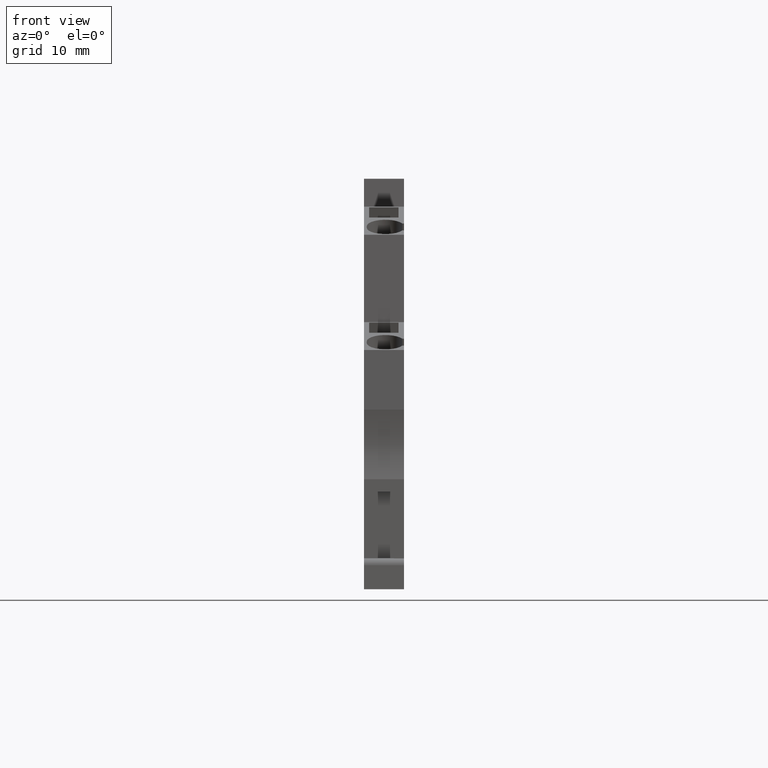
[diagram: clean part render]
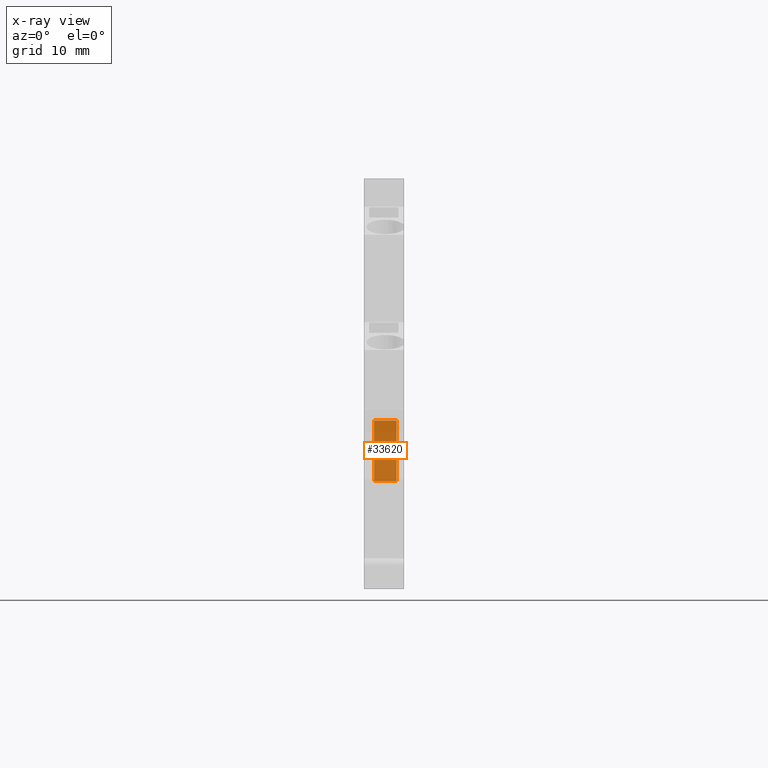
[diagram: x-ray — body ghosted, one internal face saturated and labeled with its STEP entity id]
A machine part, front view, then the same camera in x-ray: the body is ghosted and one INTERNAL B-rep face — a face not visible from any outside direction — is saturated and labeled: STEP entity #33620.
In plain terms, the highlighted planar face has unit normal (0, 0.9397, -0.342).
Its self-contained STEP definition (entity closure, byte-faithful):
#28800=CARTESIAN_POINT('',(135.01692170723,-45.8299339805575,
52.9600000000294));
#28810=VERTEX_POINT('',#28800);
#28840=CARTESIAN_POINT('',(135.01692170723,-45.8299339805575,
53.4921385846868));
#28850=DIRECTION('',(0.,0.,-1.));
#28860=VECTOR('',#28850,1.);
#28870=LINE('',#28840,#28860);
#28880=CARTESIAN_POINT('',(135.01692170723,-45.8299339805575,
50.0600000000294));
#28890=VERTEX_POINT('',#28880);
#28900=EDGE_CURVE('',#28810,#28890,#28870,.T.);
#33320=CARTESIAN_POINT('',(133.666060598337,-49.5413943740754,
52.9600000000294));
#33330=DIRECTION('',(0.939692620786336,-0.342020143324494,0.));
#33340=DIRECTION('',(-0.342020143324494,-0.939692620786336,0.));
#33350=AXIS2_PLACEMENT_3D('',#33320,#33330,#33340);
#33360=PLANE('',#33350);
#33370=CARTESIAN_POINT('',(140.677355079249,-30.2780211065491,
52.9600000000294));
#33380=DIRECTION('',(-0.342020143324494,-0.939692620786336,0.));
#33390=VECTOR('',#33380,1.);
#33400=LINE('',#33370,#33390);
#33410=CARTESIAN_POINT('',(137.872908361228,-37.9831751384035,
52.9600000000294));
#33420=VERTEX_POINT('',#33410);
#33430=EDGE_CURVE('',#33420,#28810,#33400,.T.);
#33440=ORIENTED_EDGE('',*,*,#33430,.T.);
#33450=CARTESIAN_POINT('',(137.872908361228,-37.9831751384035,
52.9600000000294));
#33460=DIRECTION('',(0.,0.,-1.));
#33470=VECTOR('',#33460,1.);
#33480=LINE('',#33450,#33470);
#33490=CARTESIAN_POINT('',(137.872908361228,-37.9831751384035,
50.0600000000294));
#33500=VERTEX_POINT('',#33490);
#33510=EDGE_CURVE('',#33420,#33500,#33480,.T.);
#33520=ORIENTED_EDGE('',*,*,#33510,.F.);
#33530=CARTESIAN_POINT('',(140.677355079249,-30.2780211065491,
50.0600000000294));
#33540=DIRECTION('',(0.342020143324494,0.939692620786336,0.));
#33550=VECTOR('',#33540,1.);
#33560=LINE('',#33530,#33550);
#33570=EDGE_CURVE('',#28890,#33500,#33560,.T.);
#33580=ORIENTED_EDGE('',*,*,#33570,.T.);
#33590=ORIENTED_EDGE('',*,*,#28900,.T.);
#33600=EDGE_LOOP('',(#33590,#33580,#33520,#33440));
#33610=FACE_OUTER_BOUND('',#33600,.T.);
#33620=ADVANCED_FACE('',(#33610),#33360,.T.);